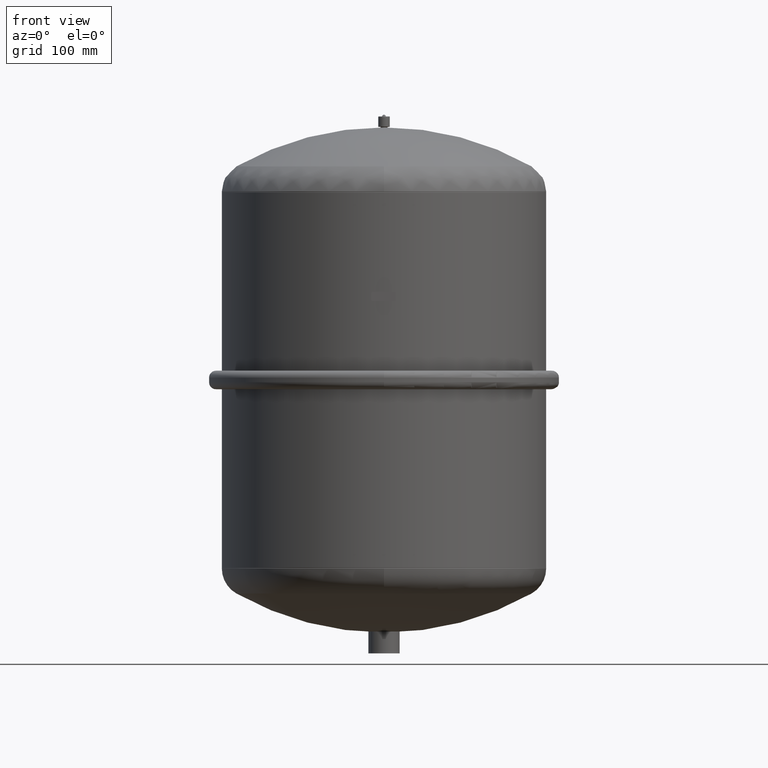
[diagram: clean part render]
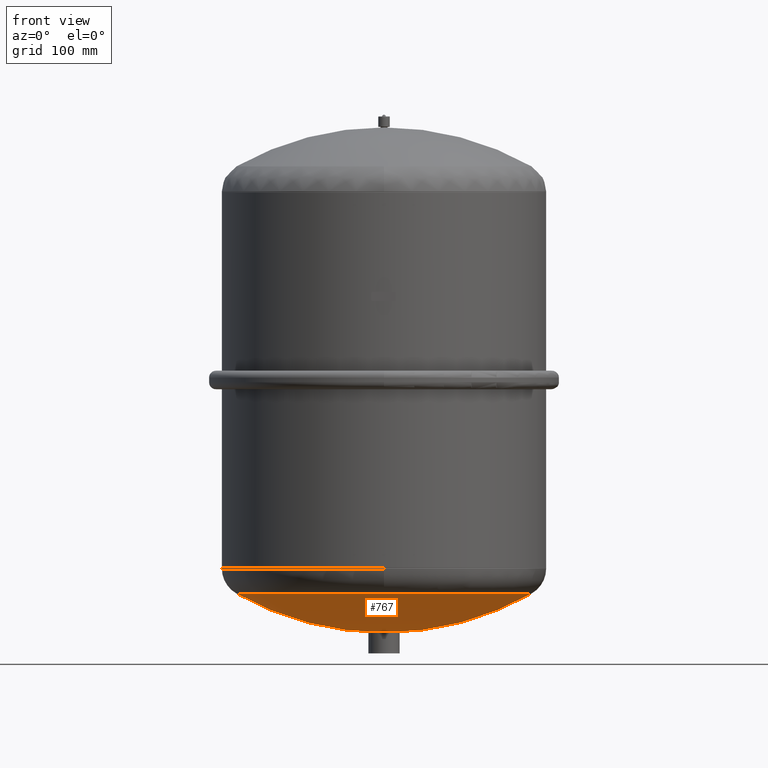
[diagram: same view with one face highlighted and labeled with its STEP entity id]
A machine part, front view. The second image highlights one B-rep face of the part: STEP entity #767.
In plain terms, the highlighted spherical surface has radius 258 mm.
Its self-contained STEP definition (entity closure, byte-faithful):
#689=CARTESIAN_POINT('',(3.355614E-015,-127.33905579399143,51.614695513510156));
#690=VERTEX_POINT('',#689);
#715=CARTESIAN_POINT('',(-127.33905579399145,4.112114E-015,51.614695513510199));
#716=VERTEX_POINT('',#715);
#724=CARTESIAN_POINT('',(-4.148636E-015,4.112114E-015,51.614695513510178));
#725=DIRECTION('',(0.0,0.0,1.0));
#726=DIRECTION('',(-1.0,0.0,0.0));
#727=AXIS2_PLACEMENT_3D('',#724,#725,#726);
#728=CIRCLE('',#727,127.33905579399143);
#729=EDGE_CURVE('',#716,#690,#728,.T.);
#734=CARTESIAN_POINT('',(-4.947573E-014,-3.710680E-014,276.00000000000006));
#735=DIRECTION('',(0.0,0.0,1.0));
#736=DIRECTION('',(1.0,0.0,0.0));
#737=AXIS2_PLACEMENT_3D('',#734,#735,#736);
#738=SPHERICAL_SURFACE('',#737,258.00000000000006);
#739=CARTESIAN_POINT('',(127.33905579399143,-3.710680E-014,51.614695513510163));
#740=VERTEX_POINT('',#739);
#741=CARTESIAN_POINT('',(-6.527315E-014,-3.710680E-014,18.0));
#742=VERTEX_POINT('',#741);
#743=CARTESIAN_POINT('',(-4.947573E-014,-3.710680E-014,276.00000000000006));
#744=DIRECTION('',(0.0,1.0,0.0));
#745=DIRECTION('',(1.0,0.0,0.0));
#746=AXIS2_PLACEMENT_3D('',#743,#744,#745);
#747=CIRCLE('',#746,258.00000000000006);
#748=EDGE_CURVE('',#740,#742,#747,.T.);
#749=ORIENTED_EDGE('',*,*,#748,.F.);
#750=CARTESIAN_POINT('',(-4.148636E-015,4.112114E-015,51.614695513510178));
#751=DIRECTION('',(0.0,0.0,1.0));
#752=DIRECTION('',(-1.0,0.0,0.0));
#753=AXIS2_PLACEMENT_3D('',#750,#751,#752);
#754=CIRCLE('',#753,127.33905579399143);
#755=EDGE_CURVE('',#690,#740,#754,.T.);
#756=ORIENTED_EDGE('',*,*,#755,.F.);
#757=ORIENTED_EDGE('',*,*,#729,.F.);
#758=CARTESIAN_POINT('',(-4.947573E-014,-3.710680E-014,276.00000000000006));
#759=DIRECTION('',(0.0,-1.0,0.0));
#760=DIRECTION('',(-1.0,0.0,0.0));
#761=AXIS2_PLACEMENT_3D('',#758,#759,#760);
#762=CIRCLE('',#761,258.00000000000006);
#763=EDGE_CURVE('',#716,#742,#762,.T.);
#764=ORIENTED_EDGE('',*,*,#763,.T.);
#765=EDGE_LOOP('',(#749,#756,#757,#764));
#766=FACE_OUTER_BOUND('',#765,.T.);
#767=ADVANCED_FACE('',(#766),#738,.T.);